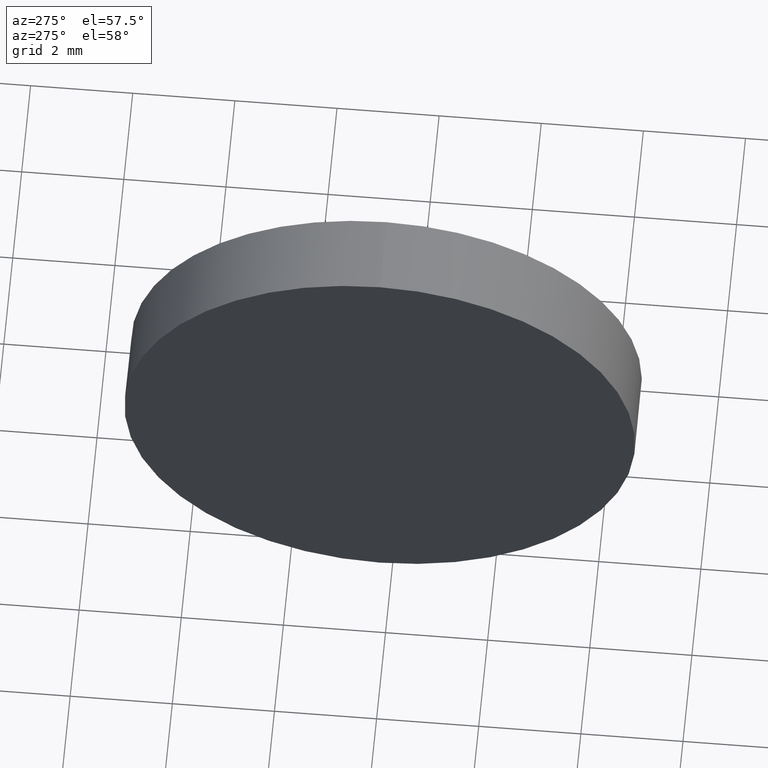
[diagram: clean part render]
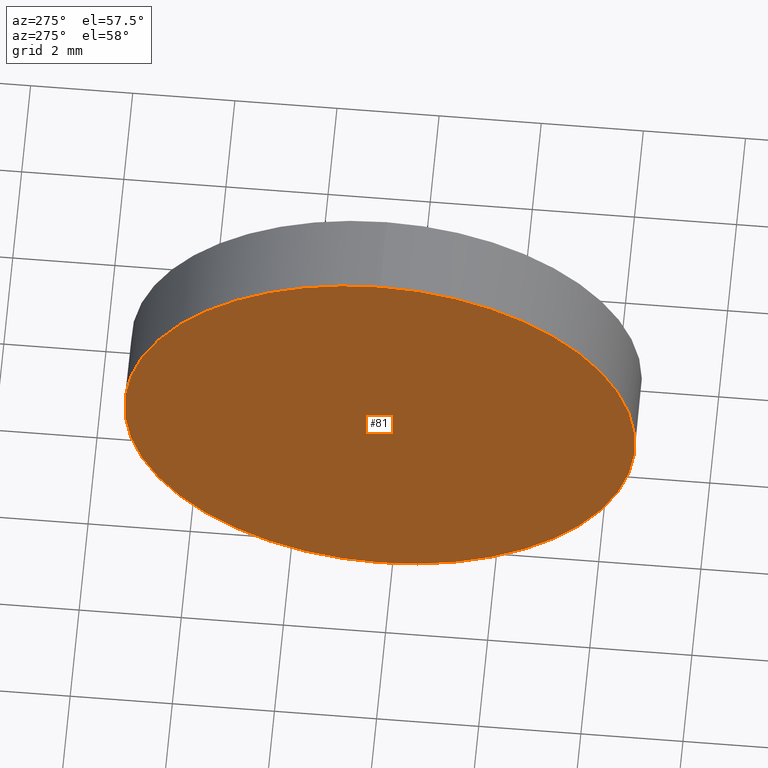
[diagram: same view with one face highlighted and labeled with its STEP entity id]
A machine part, auxiliary view. The second image highlights one B-rep face of the part: STEP entity #81.
In plain terms, the highlighted planar face has unit normal (1, 0, 0).
Its self-contained STEP definition (entity closure, byte-faithful):
#15 = CIRCLE ( 'NONE', #165, 5.000000000000004400 ) ;
#16 = AXIS2_PLACEMENT_3D ( 'NONE', #166, #139, #106 ) ;
#20 = CARTESIAN_POINT ( 'NONE',  ( 595.4677683495610800, 196.2413410998470100, 0.0000000000000000000 ) ) ;
#25 = ORIENTED_EDGE ( 'NONE', *, *, #103, .T. ) ;
#49 = CARTESIAN_POINT ( 'NONE',  ( 595.4677683495610800, 196.2413410998470100, 0.0000000000000000000 ) ) ;
#52 = EDGE_CURVE ( 'NONE', #159, #55, #15, .T. ) ;
#55 = VERTEX_POINT ( 'NONE', #108 ) ;
#66 = DIRECTION ( 'NONE',  ( 1.000000000000000000, 0.0000000000000000000, 0.0000000000000000000 ) ) ;
#68 = DIRECTION ( 'NONE',  ( 0.0000000000000000000, 0.0000000000000000000, -1.000000000000000000 ) ) ;
#69 = CARTESIAN_POINT ( 'NONE',  ( 595.4677683495610800, 196.2413410998470100, 5.000000000000004400 ) ) ;
#81 = ADVANCED_FACE ( 'NONE', ( #148 ), #157, .F. ) ;
#103 = EDGE_CURVE ( 'NONE', #55, #159, #136, .T. ) ;
#106 = DIRECTION ( 'NONE',  ( 0.0000000000000000000, 0.0000000000000000000, 1.000000000000000000 ) ) ;
#107 = DIRECTION ( 'NONE',  ( 0.0000000000000000000, 0.0000000000000000000, 1.000000000000000000 ) ) ;
#108 = CARTESIAN_POINT ( 'NONE',  ( 595.4677683495610800, 196.2413410998470100, -5.000000000000004400 ) ) ;
#110 = DIRECTION ( 'NONE',  ( -1.000000000000000000, -0.0000000000000000000, -0.0000000000000000000 ) ) ;
#121 = ORIENTED_EDGE ( 'NONE', *, *, #52, .T. ) ;
#136 = CIRCLE ( 'NONE', #16, 5.000000000000004400 ) ;
#139 = DIRECTION ( 'NONE',  ( -1.000000000000000000, -0.0000000000000000000, -0.0000000000000000000 ) ) ;
#140 = AXIS2_PLACEMENT_3D ( 'NONE', #49, #66, #68 ) ;
#148 = FACE_OUTER_BOUND ( 'NONE', #164, .T. ) ;
#157 = PLANE ( 'NONE',  #140 ) ;
#159 = VERTEX_POINT ( 'NONE', #69 ) ;
#164 = EDGE_LOOP ( 'NONE', ( #121, #25 ) ) ;
#165 = AXIS2_PLACEMENT_3D ( 'NONE', #20, #110, #107 ) ;
#166 = CARTESIAN_POINT ( 'NONE',  ( 595.4677683495610800, 196.2413410998470100, 0.0000000000000000000 ) ) ;